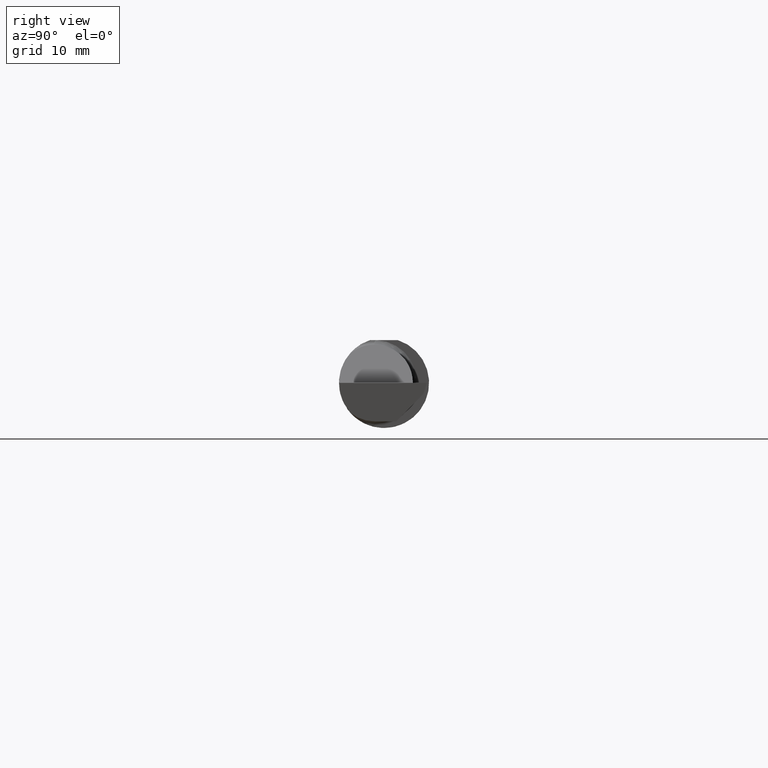
[diagram: clean part render]
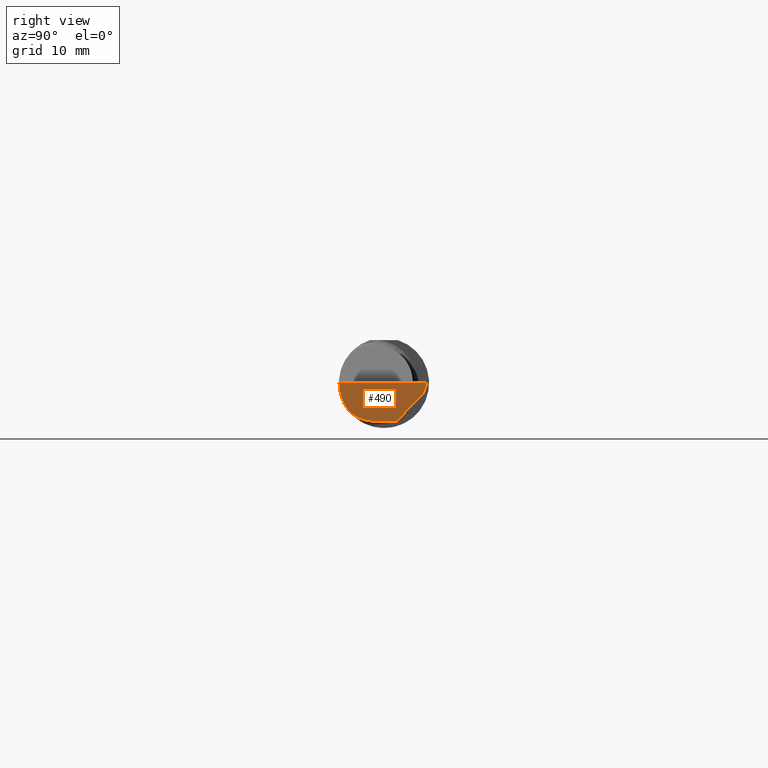
[diagram: same view with one face highlighted and labeled with its STEP entity id]
A machine part, right view. The second image highlights one B-rep face of the part: STEP entity #490.
In plain terms, the highlighted planar face has unit normal (-0.9922, 0.026, 0.1219).
Its self-contained STEP definition (entity closure, byte-faithful):
#25 = DIRECTION ( 'NONE',  ( 0.1219104985252699169, 0.000000000000000000, 0.9925410975618693676 ) ) ;
#32 = VERTEX_POINT ( 'NONE', #697 ) ;
#44 = ORIENTED_EDGE ( 'NONE', *, *, #485, .F. ) ;
#52 = VERTEX_POINT ( 'NONE', #688 ) ;
#80 = CARTESIAN_POINT ( 'NONE',  ( 3.987226101480002782, -0.2496655036952227513, -1.346597502108382365E-16 ) ) ;
#91 = LINE ( 'NONE', #458, #634 ) ;
#114 = CARTESIAN_POINT ( 'NONE',  ( 3.966195468375008470, -0.05299999999999998462, -0.2131499999999999229 ) ) ;
#115 = ORIENTED_EDGE ( 'NONE', *, *, #130, .F. ) ;
#121 = EDGE_LOOP ( 'NONE', ( #772, #115, #740, #237, #44, #689 ) ) ;
#130 = EDGE_CURVE ( 'NONE', #32, #392, #571, .T. ) ;
#237 = ORIENTED_EDGE ( 'NONE', *, *, #669, .F. ) ;
#250 = CARTESIAN_POINT ( 'NONE',  ( 3.992127980275556709, 0.2189633278254519977, -0.05999999999999999778 ) ) ;
#261 = CARTESIAN_POINT ( 'NONE',  ( 3.987221270274236229, -0.2498499999999999888, -1.346590301211604859E-16 ) ) ;
#262 = EDGE_CURVE ( 'NONE', #353, #32, #91, .T. ) ;
#270 = CARTESIAN_POINT ( 'NONE',  ( 3.987221270274236229, -0.2498499999999999888, -1.346590301211604859E-16 ) ) ;
#330 = FACE_OUTER_BOUND ( 'NONE', #121, .T. ) ;
#332 = PLANE ( 'NONE',  #543 ) ;
#335 = DIRECTION ( 'NONE',  ( -0.02617694830786351096, -0.9996573249755575929, 1.707029659308874488E-16 ) ) ;
#353 = VERTEX_POINT ( 'NONE', #250 ) ;
#378 = LINE ( 'NONE', #80, #607 ) ;
#392 = VERTEX_POINT ( 'NONE', #114 ) ;
#394 = VECTOR ( 'NONE', #777, 39.37007874015748854 ) ;
#429 = EDGE_CURVE ( 'NONE', #52, #552, #502, .T. ) ;
#444 = CARTESIAN_POINT ( 'NONE',  ( 3.964907988924523785, -0.1021668565906570653, -0.2131499999999999784 ) ) ;
#448 = DIRECTION ( 'NONE',  ( -0.9922060308645497262, 0.02598182930468380392, 0.1218693434051345420 ) ) ;
#457 = LINE ( 'NONE', #532, #394 ) ;
#458 = CARTESIAN_POINT ( 'NONE',  ( 3.983714411583730630, 0.1632262006094490903, -0.1166167083458043846 ) ) ;
#478 = VECTOR ( 'NONE', #335, 39.37007874015748854 ) ;
#485 = EDGE_CURVE ( 'NONE', #552, #694, #378, .T. ) ;
#490 = ADVANCED_FACE ( 'NONE', ( #330 ), #332, .F. ) ;
#497 = EDGE_CURVE ( 'NONE', #52, #392, #583, .T. ) ;
#499 = CARTESIAN_POINT ( 'NONE',  ( 3.973097331270538657, -0.2278791102234774268, -0.1196748990301326199 ) ) ;
#502 =( BOUNDED_CURVE ( )  B_SPLINE_CURVE ( 3, ( #636, #499, #745, #270 ),
 .UNSPECIFIED., .F., .F. ) 
 B_SPLINE_CURVE_WITH_KNOTS ( ( 4, 4 ),
 ( 0.6344818218799022080, 1.360746882514783040 ),
 .UNSPECIFIED. ) 
 CURVE ( )  GEOMETRIC_REPRESENTATION_ITEM ( )  RATIONAL_B_SPLINE_CURVE ( ( 1.000000000000000000, 0.9565258159410998662, 0.9565258159410998662, 1.000000000000000000 ) ) 
 REPRESENTATION_ITEM ( '' )  );
#503 = CARTESIAN_POINT ( 'NONE',  ( 3.966195468375008470, -0.05299999999999998462, -0.2131499999999999229 ) ) ;
#532 = CARTESIAN_POINT ( 'NONE',  ( 3.991023571893938193, 0.2162715254282662480, -0.06841772571928342317 ) ) ;
#537 = CARTESIAN_POINT ( 'NONE',  ( 4.000000000000011546, 0.2381500000000409123, 1.295322800245870883E-13 ) ) ;
#538 = DIRECTION ( 'NONE',  ( -0.1053106618241655690, -0.6976485211320173629, -0.7086580314005234138 ) ) ;
#543 = AXIS2_PLACEMENT_3D ( 'NONE', #576, #448, #25 ) ;
#552 = VERTEX_POINT ( 'NONE', #261 ) ;
#565 = DIRECTION ( 'NONE',  ( 0.02617694830786353177, 0.9996573249755575929, -3.901665791506465006E-18 ) ) ;
#571 = LINE ( 'NONE', #578, #478 ) ;
#573 = CARTESIAN_POINT ( 'NONE',  ( 3.968492717492762445, -0.1868028301886794917, -0.1659208399614086338 ) ) ;
#576 = CARTESIAN_POINT ( 'NONE',  ( 3.963949576795522844, -0.1303119248116119400, -0.2149526021148821242 ) ) ;
#578 = CARTESIAN_POINT ( 'NONE',  ( 3.966218632342873196, -0.05211540375603092301, -0.2131499999999999229 ) ) ;
#583 =( BOUNDED_CURVE ( )  B_SPLINE_CURVE ( 3, ( #573, #699, #444, #503 ),
 .UNSPECIFIED., .F., .F. ) 
 B_SPLINE_CURVE_WITH_KNOTS ( ( 4, 4 ),
 ( 5.814587959757459679, 6.493234751459699083 ),
 .UNSPECIFIED. ) 
 CURVE ( )  GEOMETRIC_REPRESENTATION_ITEM ( )  RATIONAL_B_SPLINE_CURVE ( ( 1.000000000000000000, 0.9619867256453022986, 0.9619867256453022986, 1.000000000000000000 ) ) 
 REPRESENTATION_ITEM ( '' )  );
#607 = VECTOR ( 'NONE', #565, 39.37007874015748143 ) ;
#634 = VECTOR ( 'NONE', #538, 39.37007874015748854 ) ;
#636 = CARTESIAN_POINT ( 'NONE',  ( 3.968492717492762445, -0.1868028301886794917, -0.1659208399614086338 ) ) ;
#669 = EDGE_CURVE ( 'NONE', #694, #353, #457, .T. ) ;
#688 = CARTESIAN_POINT ( 'NONE',  ( 3.968492717492762445, -0.1868028301886794917, -0.1659208399614086338 ) ) ;
#689 = ORIENTED_EDGE ( 'NONE', *, *, #429, .F. ) ;
#694 = VERTEX_POINT ( 'NONE', #537 ) ;
#697 = CARTESIAN_POINT ( 'NONE',  ( 3.969369008890590411, 0.06819262280682611421, -0.2131499999999999784 ) ) ;
#699 = CARTESIAN_POINT ( 'NONE',  ( 3.965703997523711166, -0.1485302233682060380, -0.1967848538638756750 ) ) ;
#740 = ORIENTED_EDGE ( 'NONE', *, *, #262, .F. ) ;
#745 = CARTESIAN_POINT ( 'NONE',  ( 3.979623920331824660, -0.2498499999999999610, -0.06185424669427504185 ) ) ;
#772 = ORIENTED_EDGE ( 'NONE', *, *, #497, .T. ) ;
#777 = DIRECTION ( 'NONE',  ( -0.1240019227989195005, -0.3022330132596635077, -0.9451342385281334968 ) ) ;